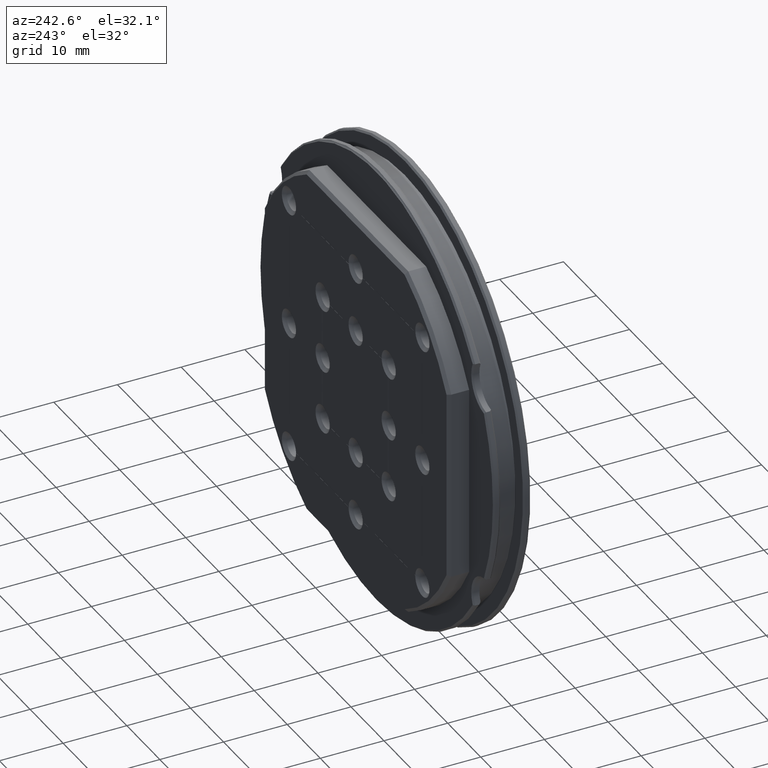
[diagram: clean part render]
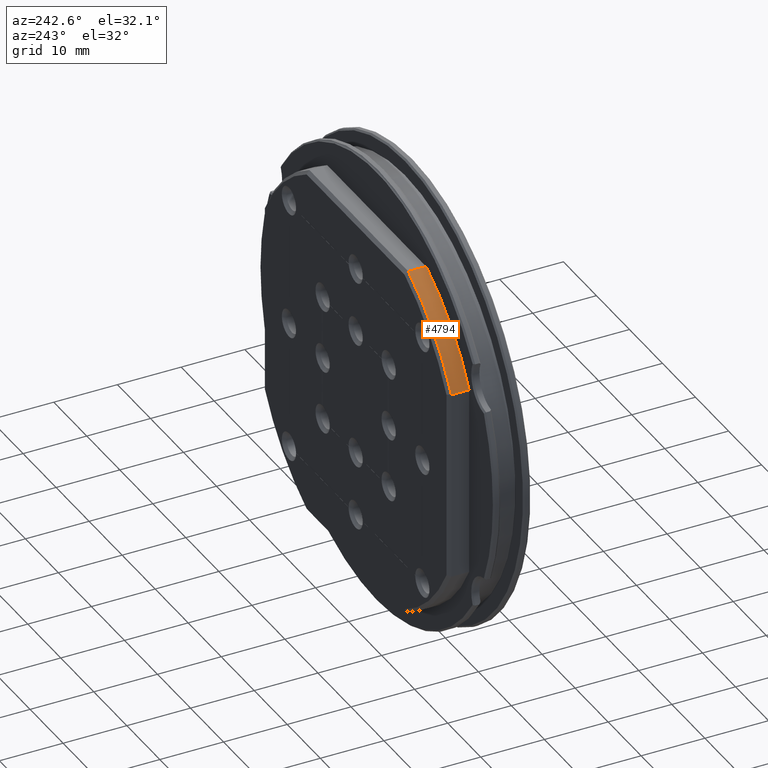
[diagram: same view with one face highlighted and labeled with its STEP entity id]
A machine part, auxiliary view. The second image highlights one B-rep face of the part: STEP entity #4794.
In plain terms, the highlighted cylindrical surface (partial cylindrical patch) has radius 31.75 mm, axis along (-0, 1, -0).
Its self-contained STEP definition (entity closure, byte-faithful):
#93 = DIRECTION ( 'NONE',  ( -0.000000000000000000, 1.000000000000000000, -0.000000000000000000 ) ) ;
#135 = CYLINDRICAL_SURFACE ( 'NONE', #1626, 31.75000000000000000 ) ;
#517 = CARTESIAN_POINT ( 'NONE',  ( 0.000000000000000000, 5.599999999999999645, 0.000000000000000000 ) ) ;
#584 = DIRECTION ( 'NONE',  ( -0.000000000000000000, 1.000000000000000000, -0.000000000000000000 ) ) ;
#741 = CARTESIAN_POINT ( 'NONE',  ( -14.96871737992268869, 5.599999999999999645, 28.00000000000001066 ) ) ;
#1028 = EDGE_CURVE ( 'NONE', #5144, #4736, #3863, .T. ) ;
#1211 = FACE_OUTER_BOUND ( 'NONE', #6794, .T. ) ;
#1337 = CIRCLE ( 'NONE', #7813, 31.75000000000000000 ) ;
#1626 = AXIS2_PLACEMENT_3D ( 'NONE', #8178, #584, #5680 ) ;
#2426 = DIRECTION ( 'NONE',  ( 0.000000000000000000, 0.000000000000000000, 1.000000000000000000 ) ) ;
#2539 = DIRECTION ( 'NONE',  ( 0.000000000000000000, 0.000000000000000000, 1.000000000000000000 ) ) ;
#2560 = EDGE_CURVE ( 'NONE', #7232, #6563, #4012, .T. ) ;
#2885 = EDGE_CURVE ( 'NONE', #6563, #5144, #1337, .T. ) ;
#2987 = VECTOR ( 'NONE', #93, 1000.000000000000000 ) ;
#3564 = CIRCLE ( 'NONE', #4319, 31.75000000000000000 ) ;
#3863 = LINE ( 'NONE', #7645, #2987 ) ;
#4012 = LINE ( 'NONE', #5924, #5022 ) ;
#4319 = AXIS2_PLACEMENT_3D ( 'NONE', #6760, #8043, #2426 ) ;
#4736 = VERTEX_POINT ( 'NONE', #6154 ) ;
#4782 = ORIENTED_EDGE ( 'NONE', *, *, #6652, .T. ) ;
#4794 = ADVANCED_FACE ( 'NONE', ( #1211 ), #135, .T. ) ;
#4944 = DIRECTION ( 'NONE',  ( 0.000000000000000000, 1.000000000000000000, 0.000000000000000000 ) ) ;
#5022 = VECTOR ( 'NONE', #5191, 1000.000000000000000 ) ;
#5144 = VERTEX_POINT ( 'NONE', #741 ) ;
#5177 = CARTESIAN_POINT ( 'NONE',  ( -27.99999999999998934, 8.399999999999991473, 14.96871737992272422 ) ) ;
#5191 = DIRECTION ( 'NONE',  ( 0.000000000000000000, -1.000000000000000000, 0.000000000000000000 ) ) ;
#5358 = CARTESIAN_POINT ( 'NONE',  ( -27.99999999999998934, 5.599999999999994316, 14.96871737992272422 ) ) ;
#5680 = DIRECTION ( 'NONE',  ( 0.000000000000000000, 0.000000000000000000, 1.000000000000000000 ) ) ;
#5857 = ORIENTED_EDGE ( 'NONE', *, *, #1028, .T. ) ;
#5924 = CARTESIAN_POINT ( 'NONE',  ( -27.99999999999998934, 5.599999999999999645, 14.96871737992272422 ) ) ;
#6154 = CARTESIAN_POINT ( 'NONE',  ( -14.96871737992268869, 8.399999999999993250, 28.00000000000001066 ) ) ;
#6403 = ORIENTED_EDGE ( 'NONE', *, *, #2885, .T. ) ;
#6563 = VERTEX_POINT ( 'NONE', #5358 ) ;
#6652 = EDGE_CURVE ( 'NONE', #4736, #7232, #3564, .T. ) ;
#6760 = CARTESIAN_POINT ( 'NONE',  ( 0.000000000000000000, 8.399999999999993250, 0.000000000000000000 ) ) ;
#6794 = EDGE_LOOP ( 'NONE', ( #5857, #4782, #7396, #6403 ) ) ;
#7232 = VERTEX_POINT ( 'NONE', #5177 ) ;
#7396 = ORIENTED_EDGE ( 'NONE', *, *, #2560, .T. ) ;
#7645 = CARTESIAN_POINT ( 'NONE',  ( -14.96871737992268869, 5.599999999999999645, 28.00000000000001066 ) ) ;
#7813 = AXIS2_PLACEMENT_3D ( 'NONE', #517, #4944, #2539 ) ;
#8043 = DIRECTION ( 'NONE',  ( 0.000000000000000000, -1.000000000000000000, 0.000000000000000000 ) ) ;
#8178 = CARTESIAN_POINT ( 'NONE',  ( 0.000000000000000000, 5.599999999999999645, 0.000000000000000000 ) ) ;